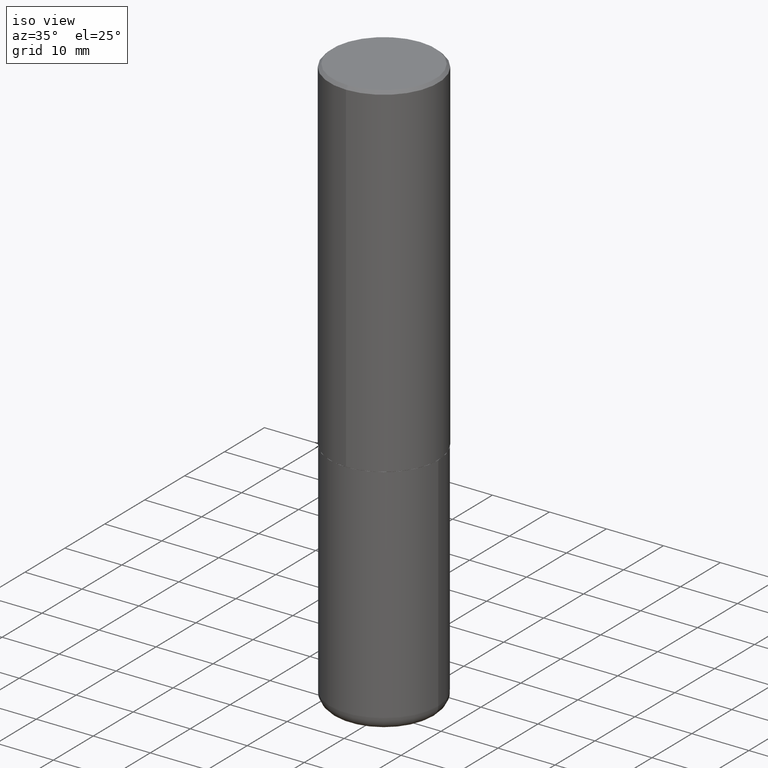
[diagram: clean part render]
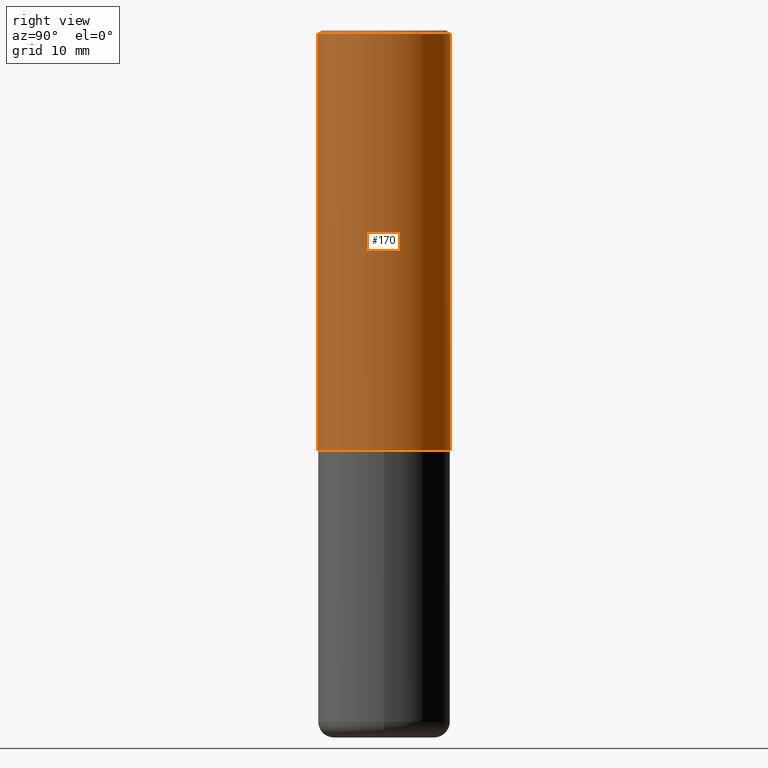
[diagram: tour spotlight — one face highlighted and labeled with its STEP entity id]
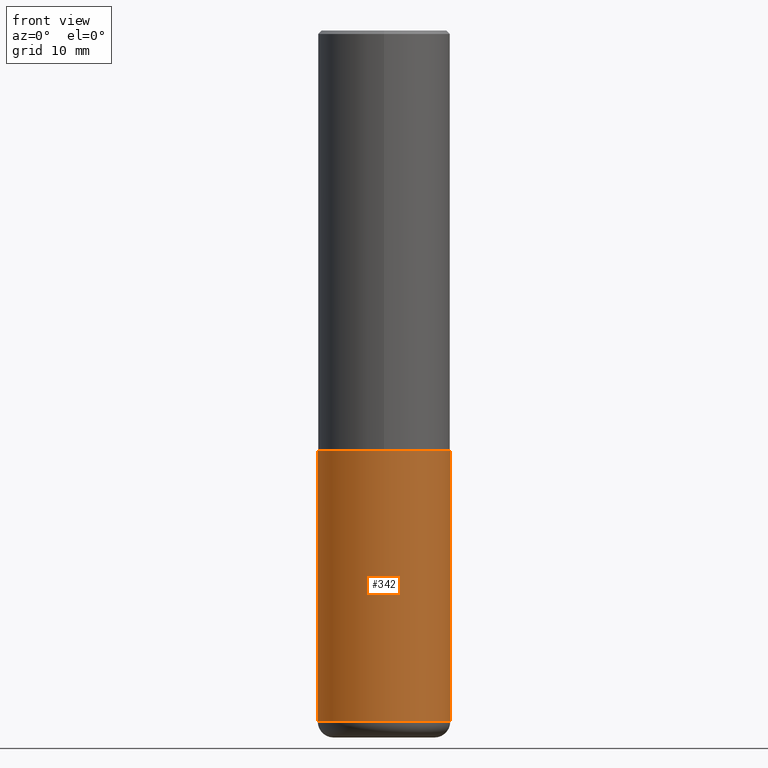
[diagram: tour spotlight — one face highlighted and labeled with its STEP entity id]
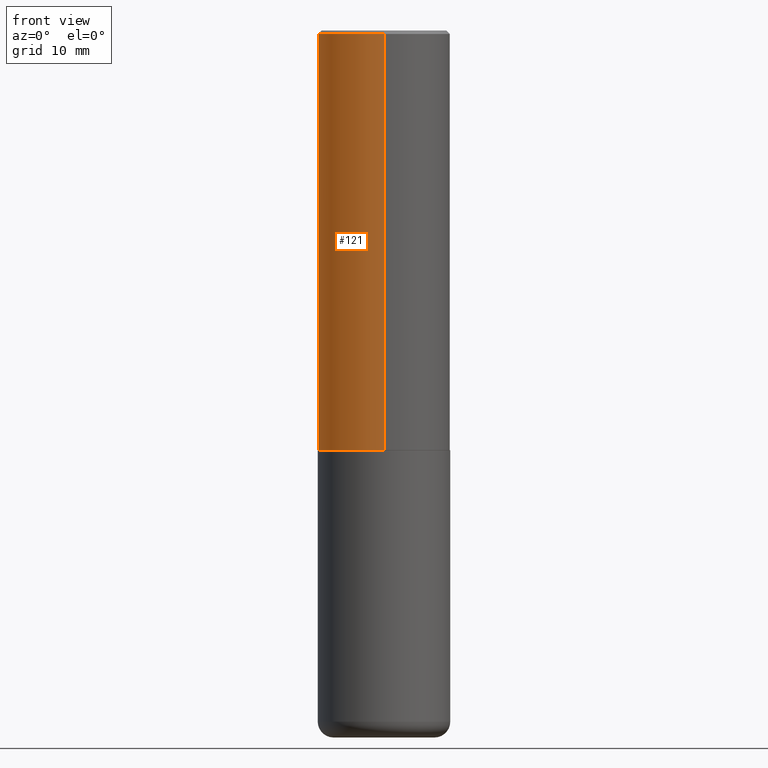
[diagram: tour spotlight — one face highlighted and labeled with its STEP entity id]
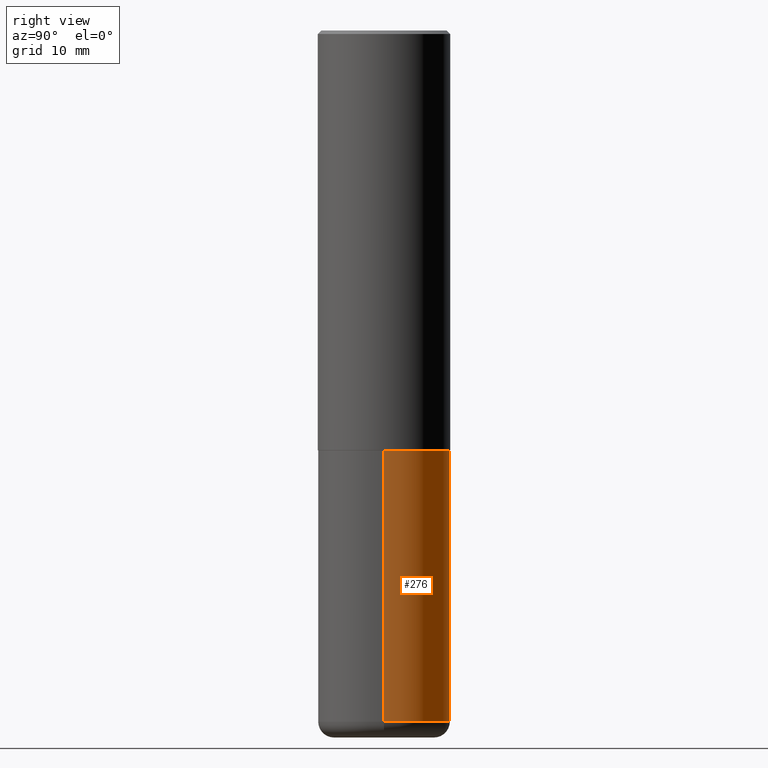
[diagram: tour spotlight — one face highlighted and labeled with its STEP entity id]
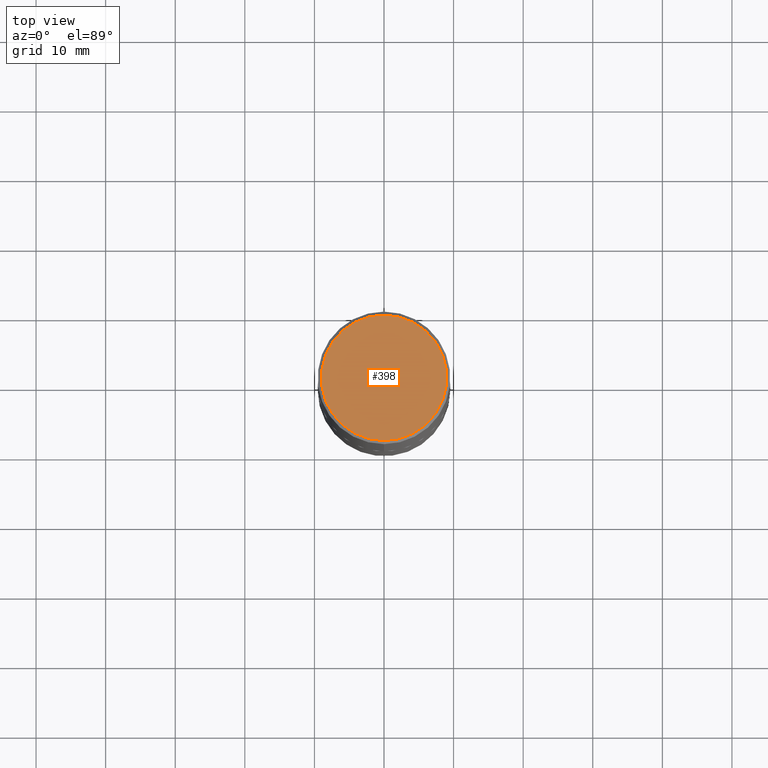
[diagram: tour spotlight — one face highlighted and labeled with its STEP entity id]
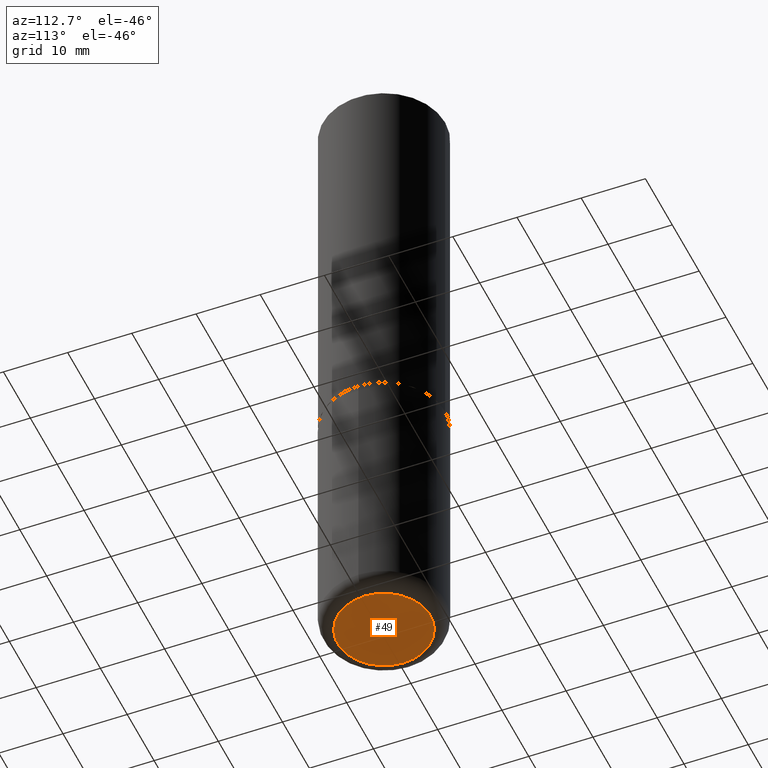
[diagram: tour spotlight — one face highlighted and labeled with its STEP entity id]
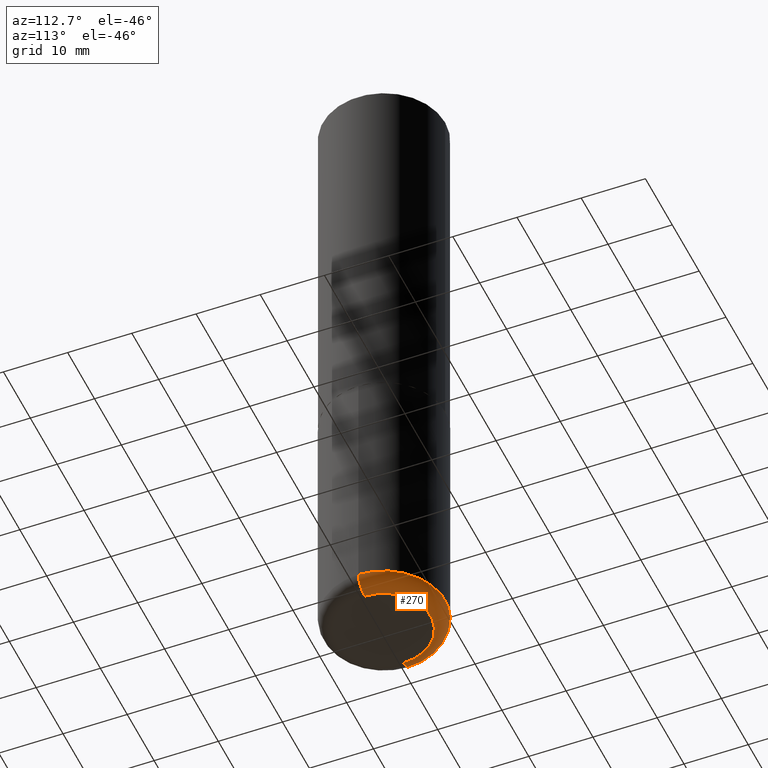
[diagram: tour spotlight — one face highlighted and labeled with its STEP entity id]
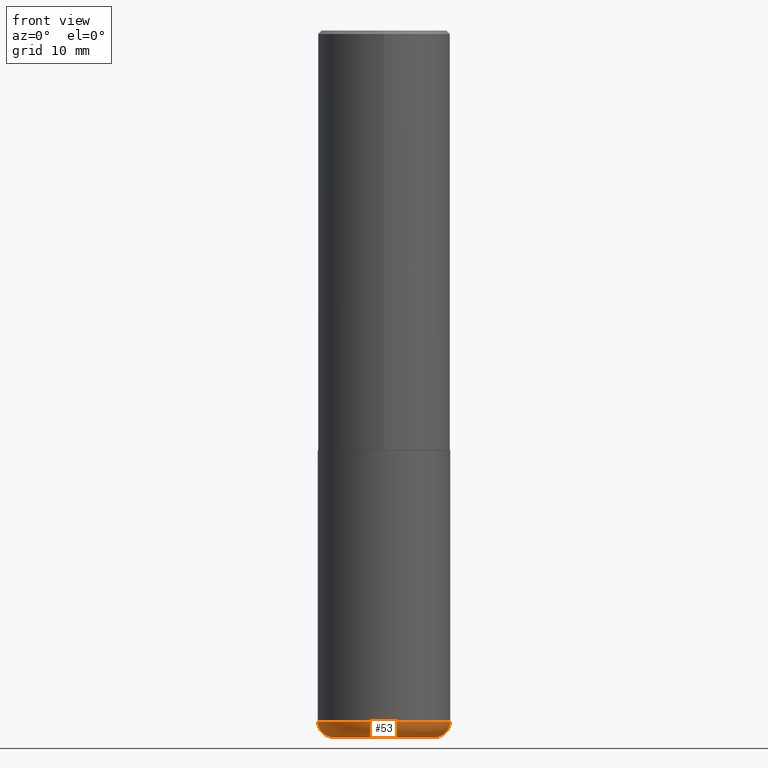
[diagram: tour spotlight — one face highlighted and labeled with its STEP entity id]
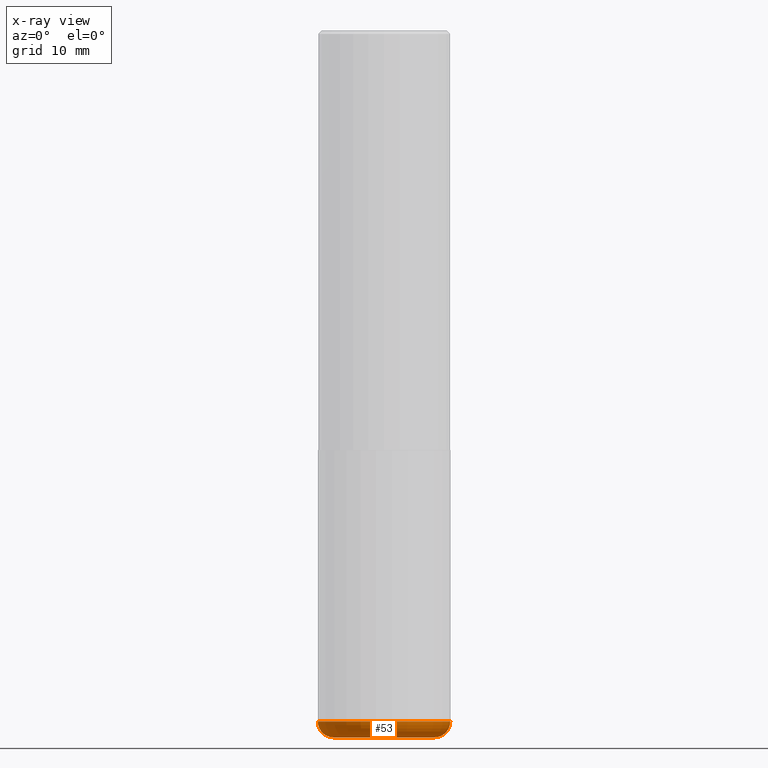
[diagram: x-ray of the same camera — body ghosted, this tour face saturated]
A machine part: a face-by-face anatomy tour. The part has 14 B-rep faces; the first image is the clean iso view, then the 8 largest visible faces are spotlighted one at a time (largest first), each with its STEP entity span.

Face 1 — right view, entity #170. In plain terms, the highlighted cylindrical surface (partial cylindrical patch) has radius 9.525 mm, axis along (-0, 0, 1).
Definition (entity closure, byte-faithful):
#2 = CARTESIAN_POINT ( 'NONE',  ( -2.618611004132294402E-15, -0.3750000000000086597, -2.373999999999998334 ) ) ;
#21 = CARTESIAN_POINT ( 'NONE',  ( 0.000000000000000000, 0.000000000000000000, 0.000000000000000000 ) ) ;
#31 = DIRECTION ( 'NONE',  ( -6.982962677686266711E-15, -1.000000000000000000, 3.491896057743181088E-15 ) ) ;
#42 = ORIENTED_EDGE ( 'NONE', *, *, #190, .F. ) ;
#52 = FACE_OUTER_BOUND ( 'NONE', #253, .T. ) ;
#57 = ORIENTED_EDGE ( 'NONE', *, *, #110, .F. ) ;
#91 = CARTESIAN_POINT ( 'NONE',  ( 2.618611004132350016E-15, 0.3749999999999998890, -0.02000000000000139513 ) ) ;
#105 = CIRCLE ( 'NONE', #287, 0.3749999999999999445 ) ;
#110 = EDGE_CURVE ( 'NONE', #388, #259, #265, .T. ) ;
#112 = CARTESIAN_POINT ( 'NONE',  ( 4.890358419050158045E-31, -6.983792115486392597E-17, -0.02000000000000008715 ) ) ;
#139 = VECTOR ( 'NONE', #207, 39.37007874015748143 ) ;
#158 = EDGE_CURVE ( 'NONE', #392, #264, #178, .T. ) ;
#164 = CARTESIAN_POINT ( 'NONE',  ( 2.664535259100406068E-15, 0.3749999999999921174, -2.374000000000001442 ) ) ;
#170 = ADVANCED_FACE ( 'NONE', ( #52 ), #380, .T. ) ;
#178 = LINE ( 'NONE', #238, #351 ) ;
#190 = EDGE_CURVE ( 'NONE', #259, #264, #105, .T. ) ;
#202 = CIRCLE ( 'NONE', #282, 0.3750000000000003886 ) ;
#207 = DIRECTION ( 'NONE',  ( -2.445179209525069021E-29, 3.491896057743180694E-15, 1.000000000000000000 ) ) ;
#215 = CARTESIAN_POINT ( 'NONE',  ( -2.572686749164323153E-15, -0.3750000000000000555, -0.01999999999999877570 ) ) ;
#225 = ORIENTED_EDGE ( 'NONE', *, *, #382, .T. ) ;
#238 = CARTESIAN_POINT ( 'NONE',  ( 2.664535259100376486E-15, 0.3750000000000001665, -1.309461021653693451E-15 ) ) ;
#242 = DIRECTION ( 'NONE',  ( -2.445179209525068741E-29, 3.491896057743181088E-15, 1.000000000000000000 ) ) ;
#252 = CARTESIAN_POINT ( 'NONE',  ( 5.804855443412511850E-29, -8.289761241082311446E-15, -2.373999999999999666 ) ) ;
#253 = EDGE_LOOP ( 'NONE', ( #225, #308, #42, #57 ) ) ;
#254 = DIRECTION ( 'NONE',  ( -6.982962677686265922E-15, -1.000000000000000000, 3.642463991552347014E-15 ) ) ;
#259 = VERTEX_POINT ( 'NONE', #215 ) ;
#264 = VERTEX_POINT ( 'NONE', #91 ) ;
#265 = LINE ( 'NONE', #269, #139 ) ;
#269 = CARTESIAN_POINT ( 'NONE',  ( -2.618611004132351200E-15, -0.3750000000000001665, 1.309461021653693451E-15 ) ) ;
#282 = AXIS2_PLACEMENT_3D ( 'NONE', #252, #356, #254 ) ;
#287 = AXIS2_PLACEMENT_3D ( 'NONE', #112, #309, #418 ) ;
#308 = ORIENTED_EDGE ( 'NONE', *, *, #158, .T. ) ;
#309 = DIRECTION ( 'NONE',  ( -2.445179209525068741E-29, 3.491896057743181088E-15, 1.000000000000000000 ) ) ;
#341 = DIRECTION ( 'NONE',  ( -2.445179209525069021E-29, 3.491896057743180694E-15, 1.000000000000000000 ) ) ;
#351 = VECTOR ( 'NONE', #341, 39.37007874015748143 ) ;
#356 = DIRECTION ( 'NONE',  ( -2.445179209525068741E-29, 3.491896057743181088E-15, 1.000000000000000000 ) ) ;
#380 = CYLINDRICAL_SURFACE ( 'NONE', #383, 0.3750000000000001665 ) ;
#382 = EDGE_CURVE ( 'NONE', #388, #392, #202, .T. ) ;
#383 = AXIS2_PLACEMENT_3D ( 'NONE', #21, #242, #31 ) ;
#388 = VERTEX_POINT ( 'NONE', #2 ) ;
#392 = VERTEX_POINT ( 'NONE', #164 ) ;
#418 = DIRECTION ( 'NONE',  ( -6.982962677686266711E-15, -1.000000000000000000, 3.494488891895537218E-15 ) ) ;

Face 2 — front view, entity #342. In plain terms, the highlighted cylindrical surface (partial cylindrical patch) has radius 9.525 mm, axis along (-0, 0, 1).
Definition (entity closure, byte-faithful):
#6 = VECTOR ( 'NONE', #151, 39.37007874015748143 ) ;
#24 = CARTESIAN_POINT ( 'NONE',  ( -0.3749999999999999445, -1.098715677577632337E-14, -3.910000000000000142 ) ) ;
#32 = ORIENTED_EDGE ( 'NONE', *, *, #317, .F. ) ;
#34 = VERTEX_POINT ( 'NONE', #357 ) ;
#41 = DIRECTION ( 'NONE',  ( 1.000000000000000000, -6.982962677686265922E-15, 4.876176775795935793E-29 ) ) ;
#56 = VECTOR ( 'NONE', #257, 39.37007874015748143 ) ;
#59 = DIRECTION ( 'NONE',  ( -2.445468806185136597E-29, 3.491481338843145583E-15, 1.000000000000000000 ) ) ;
#89 = AXIS2_PLACEMENT_3D ( 'NONE', #411, #348, #416 ) ;
#123 = CARTESIAN_POINT ( 'NONE',  ( 0.3749999999999999445, -1.627030303900905066E-14, -3.910000000000000142 ) ) ;
#129 = CARTESIAN_POINT ( 'NONE',  ( -0.3750000000000000555, -8.307444848214210473E-15, -2.375000000000000000 ) ) ;
#130 = ORIENTED_EDGE ( 'NONE', *, *, #205, .T. ) ;
#131 = CIRCLE ( 'NONE', #368, 0.3750000000000000555 ) ;
#151 = DIRECTION ( 'NONE',  ( -2.445468806185136877E-29, 3.491481338843145188E-15, 1.000000000000000000 ) ) ;
#155 = LINE ( 'NONE', #284, #6 ) ;
#188 = EDGE_CURVE ( 'NONE', #204, #345, #155, .T. ) ;
#189 = CYLINDRICAL_SURFACE ( 'NONE', #403, 0.3750000000000000555 ) ;
#192 = DIRECTION ( 'NONE',  ( -2.445468806185136597E-29, 3.491481338843145583E-15, 1.000000000000000000 ) ) ;
#204 = VERTEX_POINT ( 'NONE', #24 ) ;
#205 = EDGE_CURVE ( 'NONE', #204, #395, #217, .T. ) ;
#217 = CIRCLE ( 'NONE', #89, 0.3750000000000000555 ) ;
#229 = CARTESIAN_POINT ( 'NONE',  ( 0.3750000000000000555, -2.618611004132350016E-15, 1.828566290923476203E-29 ) ) ;
#248 = FACE_OUTER_BOUND ( 'NONE', #355, .T. ) ;
#257 = DIRECTION ( 'NONE',  ( -2.445468806185136877E-29, 3.491481338843145188E-15, 1.000000000000000000 ) ) ;
#284 = CARTESIAN_POINT ( 'NONE',  ( -0.3750000000000000555, 2.664535259100376091E-15, -1.844600658845589598E-29 ) ) ;
#292 = ORIENTED_EDGE ( 'NONE', *, *, #188, .F. ) ;
#297 = ORIENTED_EDGE ( 'NONE', *, *, #364, .T. ) ;
#316 = CARTESIAN_POINT ( 'NONE',  ( 0.000000000000000000, 0.000000000000000000, 0.000000000000000000 ) ) ;
#317 = EDGE_CURVE ( 'NONE', #345, #34, #131, .T. ) ;
#318 = LINE ( 'NONE', #229, #56 ) ;
#342 = ADVANCED_FACE ( 'NONE', ( #248 ), #189, .T. ) ;
#345 = VERTEX_POINT ( 'NONE', #129 ) ;
#346 = DIRECTION ( 'NONE',  ( 1.000000000000000000, -6.982962677686266711E-15, 0.000000000000000000 ) ) ;
#347 = CARTESIAN_POINT ( 'NONE',  ( 5.807988414689699417E-29, -8.292268179752470118E-15, -2.375000000000000000 ) ) ;
#348 = DIRECTION ( 'NONE',  ( -2.445468806185136597E-29, 3.491481338843145583E-15, 1.000000000000000000 ) ) ;
#355 = EDGE_LOOP ( 'NONE', ( #292, #130, #297, #32 ) ) ;
#357 = CARTESIAN_POINT ( 'NONE',  ( 0.3750000000000000555, -1.091087918388482013E-14, -2.375000000000000000 ) ) ;
#364 = EDGE_CURVE ( 'NONE', #395, #34, #318, .T. ) ;
#368 = AXIS2_PLACEMENT_3D ( 'NONE', #347, #59, #346 ) ;
#395 = VERTEX_POINT ( 'NONE', #123 ) ;
#403 = AXIS2_PLACEMENT_3D ( 'NONE', #316, #192, #41 ) ;
#411 = CARTESIAN_POINT ( 'NONE',  ( 9.561783032183883600E-29, -1.365169203487670064E-14, -3.910000000000000142 ) ) ;
#416 = DIRECTION ( 'NONE',  ( 1.000000000000000000, -6.982962677686266711E-15, 0.000000000000000000 ) ) ;

Face 3 — front view, entity #121. In plain terms, the highlighted cylindrical surface (partial cylindrical patch) has radius 9.525 mm, axis along (-0, 0, 1).
Definition (entity closure, byte-faithful):
#2 = CARTESIAN_POINT ( 'NONE',  ( -2.618611004132294402E-15, -0.3750000000000086597, -2.373999999999998334 ) ) ;
#16 = FACE_OUTER_BOUND ( 'NONE', #96, .T. ) ;
#17 = CYLINDRICAL_SURFACE ( 'NONE', #402, 0.3750000000000001665 ) ;
#26 = DIRECTION ( 'NONE',  ( -6.982962677686265922E-15, -1.000000000000000000, 3.642463991552347014E-15 ) ) ;
#46 = DIRECTION ( 'NONE',  ( -2.445179209525068741E-29, 3.491896057743181088E-15, 1.000000000000000000 ) ) ;
#63 = CARTESIAN_POINT ( 'NONE',  ( 5.804855443412511850E-29, -8.289761241082311446E-15, -2.373999999999999666 ) ) ;
#91 = CARTESIAN_POINT ( 'NONE',  ( 2.618611004132350016E-15, 0.3749999999999998890, -0.02000000000000139513 ) ) ;
#96 = EDGE_LOOP ( 'NONE', ( #172, #343, #156, #412 ) ) ;
#106 = DIRECTION ( 'NONE',  ( -6.982962677686266711E-15, -1.000000000000000000, 3.494488891895537218E-15 ) ) ;
#109 = DIRECTION ( 'NONE',  ( -6.982962677686266711E-15, -1.000000000000000000, 3.491896057743181088E-15 ) ) ;
#110 = EDGE_CURVE ( 'NONE', #388, #259, #265, .T. ) ;
#121 = ADVANCED_FACE ( 'NONE', ( #16 ), #17, .T. ) ;
#124 = EDGE_CURVE ( 'NONE', #264, #259, #296, .T. ) ;
#139 = VECTOR ( 'NONE', #207, 39.37007874015748143 ) ;
#142 = CARTESIAN_POINT ( 'NONE',  ( 0.000000000000000000, 0.000000000000000000, 0.000000000000000000 ) ) ;
#156 = ORIENTED_EDGE ( 'NONE', *, *, #110, .T. ) ;
#158 = EDGE_CURVE ( 'NONE', #392, #264, #178, .T. ) ;
#164 = CARTESIAN_POINT ( 'NONE',  ( 2.664535259100406068E-15, 0.3749999999999921174, -2.374000000000001442 ) ) ;
#172 = ORIENTED_EDGE ( 'NONE', *, *, #158, .F. ) ;
#178 = LINE ( 'NONE', #238, #351 ) ;
#199 = AXIS2_PLACEMENT_3D ( 'NONE', #63, #374, #26 ) ;
#207 = DIRECTION ( 'NONE',  ( -2.445179209525069021E-29, 3.491896057743180694E-15, 1.000000000000000000 ) ) ;
#212 = EDGE_CURVE ( 'NONE', #392, #388, #394, .T. ) ;
#215 = CARTESIAN_POINT ( 'NONE',  ( -2.572686749164323153E-15, -0.3750000000000000555, -0.01999999999999877570 ) ) ;
#236 = DIRECTION ( 'NONE',  ( -2.445179209525068741E-29, 3.491896057743181088E-15, 1.000000000000000000 ) ) ;
#238 = CARTESIAN_POINT ( 'NONE',  ( 2.664535259100376486E-15, 0.3750000000000001665, -1.309461021653693451E-15 ) ) ;
#259 = VERTEX_POINT ( 'NONE', #215 ) ;
#264 = VERTEX_POINT ( 'NONE', #91 ) ;
#265 = LINE ( 'NONE', #269, #139 ) ;
#269 = CARTESIAN_POINT ( 'NONE',  ( -2.618611004132351200E-15, -0.3750000000000001665, 1.309461021653693451E-15 ) ) ;
#296 = CIRCLE ( 'NONE', #361, 0.3749999999999999445 ) ;
#336 = CARTESIAN_POINT ( 'NONE',  ( 4.890358419050158045E-31, -6.983792115486392597E-17, -0.02000000000000008715 ) ) ;
#341 = DIRECTION ( 'NONE',  ( -2.445179209525069021E-29, 3.491896057743180694E-15, 1.000000000000000000 ) ) ;
#343 = ORIENTED_EDGE ( 'NONE', *, *, #212, .T. ) ;
#351 = VECTOR ( 'NONE', #341, 39.37007874015748143 ) ;
#361 = AXIS2_PLACEMENT_3D ( 'NONE', #336, #46, #106 ) ;
#374 = DIRECTION ( 'NONE',  ( -2.445179209525068741E-29, 3.491896057743181088E-15, 1.000000000000000000 ) ) ;
#388 = VERTEX_POINT ( 'NONE', #2 ) ;
#392 = VERTEX_POINT ( 'NONE', #164 ) ;
#394 = CIRCLE ( 'NONE', #199, 0.3750000000000003886 ) ;
#402 = AXIS2_PLACEMENT_3D ( 'NONE', #142, #236, #109 ) ;
#412 = ORIENTED_EDGE ( 'NONE', *, *, #124, .F. ) ;

Face 4 — right view, entity #276. In plain terms, the highlighted cylindrical surface (partial cylindrical patch) has radius 9.525 mm, axis along (-0, 0, 1).
Definition (entity closure, byte-faithful):
#6 = VECTOR ( 'NONE', #151, 39.37007874015748143 ) ;
#24 = CARTESIAN_POINT ( 'NONE',  ( -0.3749999999999999445, -1.098715677577632337E-14, -3.910000000000000142 ) ) ;
#25 = EDGE_CURVE ( 'NONE', #395, #204, #274, .T. ) ;
#27 = AXIS2_PLACEMENT_3D ( 'NONE', #391, #70, #195 ) ;
#34 = VERTEX_POINT ( 'NONE', #357 ) ;
#56 = VECTOR ( 'NONE', #257, 39.37007874015748143 ) ;
#70 = DIRECTION ( 'NONE',  ( -2.445468806185136597E-29, 3.491481338843145583E-15, 1.000000000000000000 ) ) ;
#73 = EDGE_LOOP ( 'NONE', ( #194, #378, #305, #182 ) ) ;
#88 = FACE_OUTER_BOUND ( 'NONE', #73, .T. ) ;
#107 = DIRECTION ( 'NONE',  ( 1.000000000000000000, -6.982962677686266711E-15, 0.000000000000000000 ) ) ;
#118 = AXIS2_PLACEMENT_3D ( 'NONE', #344, #148, #222 ) ;
#123 = CARTESIAN_POINT ( 'NONE',  ( 0.3749999999999999445, -1.627030303900905066E-14, -3.910000000000000142 ) ) ;
#129 = CARTESIAN_POINT ( 'NONE',  ( -0.3750000000000000555, -8.307444848214210473E-15, -2.375000000000000000 ) ) ;
#137 = EDGE_CURVE ( 'NONE', #34, #345, #258, .T. ) ;
#148 = DIRECTION ( 'NONE',  ( -2.445468806185136597E-29, 3.491481338843145583E-15, 1.000000000000000000 ) ) ;
#151 = DIRECTION ( 'NONE',  ( -2.445468806185136877E-29, 3.491481338843145188E-15, 1.000000000000000000 ) ) ;
#155 = LINE ( 'NONE', #284, #6 ) ;
#177 = DIRECTION ( 'NONE',  ( -2.445468806185136597E-29, 3.491481338843145583E-15, 1.000000000000000000 ) ) ;
#182 = ORIENTED_EDGE ( 'NONE', *, *, #364, .F. ) ;
#188 = EDGE_CURVE ( 'NONE', #204, #345, #155, .T. ) ;
#194 = ORIENTED_EDGE ( 'NONE', *, *, #25, .T. ) ;
#195 = DIRECTION ( 'NONE',  ( 1.000000000000000000, -6.982962677686266711E-15, 0.000000000000000000 ) ) ;
#204 = VERTEX_POINT ( 'NONE', #24 ) ;
#222 = DIRECTION ( 'NONE',  ( 1.000000000000000000, -6.982962677686265922E-15, 4.876176775795935793E-29 ) ) ;
#229 = CARTESIAN_POINT ( 'NONE',  ( 0.3750000000000000555, -2.618611004132350016E-15, 1.828566290923476203E-29 ) ) ;
#245 = CYLINDRICAL_SURFACE ( 'NONE', #118, 0.3750000000000000555 ) ;
#257 = DIRECTION ( 'NONE',  ( -2.445468806185136877E-29, 3.491481338843145188E-15, 1.000000000000000000 ) ) ;
#258 = CIRCLE ( 'NONE', #337, 0.3750000000000000555 ) ;
#274 = CIRCLE ( 'NONE', #27, 0.3750000000000000555 ) ;
#276 = ADVANCED_FACE ( 'NONE', ( #88 ), #245, .T. ) ;
#284 = CARTESIAN_POINT ( 'NONE',  ( -0.3750000000000000555, 2.664535259100376091E-15, -1.844600658845589598E-29 ) ) ;
#305 = ORIENTED_EDGE ( 'NONE', *, *, #137, .F. ) ;
#318 = LINE ( 'NONE', #229, #56 ) ;
#337 = AXIS2_PLACEMENT_3D ( 'NONE', #405, #177, #107 ) ;
#344 = CARTESIAN_POINT ( 'NONE',  ( 0.000000000000000000, 0.000000000000000000, 0.000000000000000000 ) ) ;
#345 = VERTEX_POINT ( 'NONE', #129 ) ;
#357 = CARTESIAN_POINT ( 'NONE',  ( 0.3750000000000000555, -1.091087918388482013E-14, -2.375000000000000000 ) ) ;
#364 = EDGE_CURVE ( 'NONE', #395, #34, #318, .T. ) ;
#378 = ORIENTED_EDGE ( 'NONE', *, *, #188, .T. ) ;
#391 = CARTESIAN_POINT ( 'NONE',  ( 9.561783032183883600E-29, -1.365169203487670064E-14, -3.910000000000000142 ) ) ;
#395 = VERTEX_POINT ( 'NONE', #123 ) ;
#405 = CARTESIAN_POINT ( 'NONE',  ( 5.807988414689699417E-29, -8.292268179752470118E-15, -2.375000000000000000 ) ) ;

Face 5 — top view, entity #398. In plain terms, the highlighted planar face has unit normal (0, -0, -1).
Definition (entity closure, byte-faithful):
#8 = VERTEX_POINT ( 'NONE', #358 ) ;
#13 = VERTEX_POINT ( 'NONE', #18 ) ;
#18 = CARTESIAN_POINT ( 'NONE',  ( -2.504081769186607821E-15, -0.3549999999999998157, 1.423316362782658809E-15 ) ) ;
#23 = ORIENTED_EDGE ( 'NONE', *, *, #324, .T. ) ;
#29 = CARTESIAN_POINT ( 'NONE',  ( -4.491629458662572214E-45, 6.414377784028912006E-31, 1.836932622838302825E-16 ) ) ;
#58 = DIRECTION ( 'NONE',  ( -2.445179209525068741E-29, 3.491896057743181088E-15, 1.000000000000000000 ) ) ;
#62 = AXIS2_PLACEMENT_3D ( 'NONE', #29, #58, #221 ) ;
#72 = DIRECTION ( 'NONE',  ( -6.982962677686266711E-15, -1.000000000000000000, 3.491896057743180694E-15 ) ) ;
#95 = PLANE ( 'NONE',  #275 ) ;
#127 = DIRECTION ( 'NONE',  ( 2.445179209525068741E-29, -3.491896057743180694E-15, -1.000000000000000000 ) ) ;
#133 = AXIS2_PLACEMENT_3D ( 'NONE', #231, #360, #72 ) ;
#214 = ORIENTED_EDGE ( 'NONE', *, *, #414, .T. ) ;
#221 = DIRECTION ( 'NONE',  ( -6.982962677686266711E-15, -1.000000000000000000, 3.491896057743180694E-15 ) ) ;
#224 = DIRECTION ( 'NONE',  ( 6.982962677686265922E-15, 1.000000000000000000, -3.491896057743180694E-15 ) ) ;
#231 = CARTESIAN_POINT ( 'NONE',  ( -4.491629458662572214E-45, 6.414377784028912006E-31, 1.836932622838302825E-16 ) ) ;
#234 = CIRCLE ( 'NONE', #133, 0.3549999999999998157 ) ;
#250 = CIRCLE ( 'NONE', #62, 0.3549999999999998157 ) ;
#275 = AXIS2_PLACEMENT_3D ( 'NONE', #353, #127, #224 ) ;
#290 = FACE_OUTER_BOUND ( 'NONE', #322, .T. ) ;
#322 = EDGE_LOOP ( 'NONE', ( #214, #23 ) ) ;
#324 = EDGE_CURVE ( 'NONE', #13, #8, #250, .T. ) ;
#353 = CARTESIAN_POINT ( 'NONE',  ( 2.478951750578623420E-15, 0.3549999999999998157, -1.147776469356913422E-15 ) ) ;
#358 = CARTESIAN_POINT ( 'NONE',  ( 2.548781377355486718E-15, 0.3549999999999998157, -1.055929838214998293E-15 ) ) ;
#360 = DIRECTION ( 'NONE',  ( -2.445179209525068741E-29, 3.491896057743181088E-15, 1.000000000000000000 ) ) ;
#398 = ADVANCED_FACE ( 'NONE', ( #290 ), #95, .F. ) ;
#414 = EDGE_CURVE ( 'NONE', #8, #13, #234, .T. ) ;

Face 6 — auxiliary view, entity #49. In plain terms, the highlighted planar face has unit normal (0, -0, -1).
Definition (entity closure, byte-faithful):
#38 = ORIENTED_EDGE ( 'NONE', *, *, #379, .F. ) ;
#49 = ADVANCED_FACE ( 'NONE', ( #203 ), #406, .T. ) ;
#51 = EDGE_CURVE ( 'NONE', #200, #299, #67, .T. ) ;
#67 = CIRCLE ( 'NONE', #415, 0.2850000000000000311 ) ;
#108 = DIRECTION ( 'NONE',  ( 2.438088387897960049E-29, -3.491481338843145188E-15, -1.000000000000000000 ) ) ;
#128 = EDGE_LOOP ( 'NONE', ( #334, #38 ) ) ;
#171 = DIRECTION ( 'NONE',  ( -2.445468806185136597E-29, 3.491481338843145583E-15, 1.000000000000000000 ) ) ;
#185 = CARTESIAN_POINT ( 'NONE',  ( 0.2850000000000000311, -1.595606971851316740E-14, -4.000000000000000000 ) ) ;
#187 = CIRCLE ( 'NONE', #330, 0.2850000000000000311 ) ;
#200 = VERTEX_POINT ( 'NONE', #185 ) ;
#203 = FACE_OUTER_BOUND ( 'NONE', #128, .T. ) ;
#232 = DIRECTION ( 'NONE',  ( 1.000000000000000000, -6.982962677686266711E-15, 0.000000000000000000 ) ) ;
#244 = CARTESIAN_POINT ( 'NONE',  ( -0.2850000000000000311, -1.146401766711631116E-14, -4.000000000000000000 ) ) ;
#293 = DIRECTION ( 'NONE',  ( -2.445468806185136597E-29, 3.491481338843145583E-15, 1.000000000000000000 ) ) ;
#299 = VERTEX_POINT ( 'NONE', #244 ) ;
#303 = CARTESIAN_POINT ( 'NONE',  ( 9.781875224740546387E-29, -1.396592535537258233E-14, -4.000000000000000000 ) ) ;
#321 = AXIS2_PLACEMENT_3D ( 'NONE', #303, #108, #401 ) ;
#327 = DIRECTION ( 'NONE',  ( 1.000000000000000000, -6.982962677686266711E-15, 0.000000000000000000 ) ) ;
#330 = AXIS2_PLACEMENT_3D ( 'NONE', #390, #293, #327 ) ;
#333 = CARTESIAN_POINT ( 'NONE',  ( 9.781875224740546387E-29, -1.396592535537258233E-14, -4.000000000000000000 ) ) ;
#334 = ORIENTED_EDGE ( 'NONE', *, *, #51, .F. ) ;
#379 = EDGE_CURVE ( 'NONE', #299, #200, #187, .T. ) ;
#390 = CARTESIAN_POINT ( 'NONE',  ( 9.781875224740546387E-29, -1.396592535537258233E-14, -4.000000000000000000 ) ) ;
#401 = DIRECTION ( 'NONE',  ( -1.000000000000000000, 6.982962677686265922E-15, -4.876176775795935793E-29 ) ) ;
#406 = PLANE ( 'NONE',  #321 ) ;
#415 = AXIS2_PLACEMENT_3D ( 'NONE', #333, #171, #232 ) ;

Face 7 — auxiliary view, entity #270. In plain terms, the highlighted toroidal blend (fillet) surface has major radius 7.239 mm and minor (blend) radius 2.286 mm.
Definition (entity closure, byte-faithful):
#9 = EDGE_CURVE ( 'NONE', #200, #395, #94, .T. ) ;
#20 = AXIS2_PLACEMENT_3D ( 'NONE', #86, #314, #117 ) ;
#24 = CARTESIAN_POINT ( 'NONE',  ( -0.3749999999999999445, -1.098715677577632337E-14, -3.910000000000000142 ) ) ;
#25 = EDGE_CURVE ( 'NONE', #395, #204, #274, .T. ) ;
#27 = AXIS2_PLACEMENT_3D ( 'NONE', #391, #70, #195 ) ;
#39 = DIRECTION ( 'NONE',  ( -6.982962677686266711E-15, -1.000000000000000000, 3.491481338843145583E-15 ) ) ;
#40 = EDGE_CURVE ( 'NONE', #299, #204, #302, .T. ) ;
#51 = EDGE_CURVE ( 'NONE', #200, #299, #67, .T. ) ;
#61 = TOROIDAL_SURFACE ( 'NONE', #20, 0.2850000000000000311, 0.08999999999999992728 ) ;
#67 = CIRCLE ( 'NONE', #415, 0.2850000000000000311 ) ;
#70 = DIRECTION ( 'NONE',  ( -2.445468806185136597E-29, 3.491481338843145583E-15, 1.000000000000000000 ) ) ;
#86 = CARTESIAN_POINT ( 'NONE',  ( 9.561783032183883600E-29, -1.365169203487670064E-14, -3.910000000000000142 ) ) ;
#94 = CIRCLE ( 'NONE', #160, 0.08999999999999992728 ) ;
#117 = DIRECTION ( 'NONE',  ( 1.000000000000000000, -6.982962677686263555E-15, 4.883557194083111219E-29 ) ) ;
#123 = CARTESIAN_POINT ( 'NONE',  ( 0.3749999999999999445, -1.627030303900905066E-14, -3.910000000000000142 ) ) ;
#125 = EDGE_LOOP ( 'NONE', ( #294, #230, #191, #163 ) ) ;
#159 = DIRECTION ( 'NONE',  ( -1.000000000000000000, 7.105427357600996337E-15, 0.000000000000000000 ) ) ;
#160 = AXIS2_PLACEMENT_3D ( 'NONE', #325, #39, #166 ) ;
#163 = ORIENTED_EDGE ( 'NONE', *, *, #9, .F. ) ;
#166 = DIRECTION ( 'NONE',  ( 1.000000000000000000, -6.982962677686273810E-15, 0.000000000000000000 ) ) ;
#171 = DIRECTION ( 'NONE',  ( -2.445468806185136597E-29, 3.491481338843145583E-15, 1.000000000000000000 ) ) ;
#185 = CARTESIAN_POINT ( 'NONE',  ( 0.2850000000000000311, -1.595606971851316740E-14, -4.000000000000000000 ) ) ;
#191 = ORIENTED_EDGE ( 'NONE', *, *, #25, .F. ) ;
#195 = DIRECTION ( 'NONE',  ( 1.000000000000000000, -6.982962677686266711E-15, 0.000000000000000000 ) ) ;
#198 = CARTESIAN_POINT ( 'NONE',  ( -0.2850000000000000311, -1.162664523796041410E-14, -3.910000000000000142 ) ) ;
#200 = VERTEX_POINT ( 'NONE', #185 ) ;
#204 = VERTEX_POINT ( 'NONE', #24 ) ;
#230 = ORIENTED_EDGE ( 'NONE', *, *, #40, .T. ) ;
#232 = DIRECTION ( 'NONE',  ( 1.000000000000000000, -6.982962677686266711E-15, 0.000000000000000000 ) ) ;
#244 = CARTESIAN_POINT ( 'NONE',  ( -0.2850000000000000311, -1.146401766711631116E-14, -4.000000000000000000 ) ) ;
#266 = AXIS2_PLACEMENT_3D ( 'NONE', #198, #319, #159 ) ;
#270 = ADVANCED_FACE ( 'NONE', ( #381 ), #61, .T. ) ;
#274 = CIRCLE ( 'NONE', #27, 0.3750000000000000555 ) ;
#294 = ORIENTED_EDGE ( 'NONE', *, *, #51, .T. ) ;
#299 = VERTEX_POINT ( 'NONE', #244 ) ;
#302 = CIRCLE ( 'NONE', #266, 0.08999999999999992728 ) ;
#314 = DIRECTION ( 'NONE',  ( -2.445468806185136597E-29, 3.491481338843145583E-15, 1.000000000000000000 ) ) ;
#319 = DIRECTION ( 'NONE',  ( 7.105427357601001859E-15, 1.000000000000000000, -3.491481338843145583E-15 ) ) ;
#325 = CARTESIAN_POINT ( 'NONE',  ( 0.2850000000000000311, -1.564183639801728729E-14, -3.910000000000000142 ) ) ;
#333 = CARTESIAN_POINT ( 'NONE',  ( 9.781875224740546387E-29, -1.396592535537258233E-14, -4.000000000000000000 ) ) ;
#381 = FACE_OUTER_BOUND ( 'NONE', #125, .T. ) ;
#391 = CARTESIAN_POINT ( 'NONE',  ( 9.561783032183883600E-29, -1.365169203487670064E-14, -3.910000000000000142 ) ) ;
#395 = VERTEX_POINT ( 'NONE', #123 ) ;
#415 = AXIS2_PLACEMENT_3D ( 'NONE', #333, #171, #232 ) ;

Face 8 — front view, entity #53. An x-ray twin of the same camera follows (body ghosted, this face saturated) — the face is partly hidden behind the body. In plain terms, the highlighted toroidal blend (fillet) surface has major radius 7.239 mm and minor (blend) radius 2.286 mm.
Definition (entity closure, byte-faithful):
#5 = ORIENTED_EDGE ( 'NONE', *, *, #9, .T. ) ;
#9 = EDGE_CURVE ( 'NONE', #200, #395, #94, .T. ) ;
#24 = CARTESIAN_POINT ( 'NONE',  ( -0.3749999999999999445, -1.098715677577632337E-14, -3.910000000000000142 ) ) ;
#39 = DIRECTION ( 'NONE',  ( -6.982962677686266711E-15, -1.000000000000000000, 3.491481338843145583E-15 ) ) ;
#40 = EDGE_CURVE ( 'NONE', #299, #204, #302, .T. ) ;
#47 = DIRECTION ( 'NONE',  ( -2.445468806185136597E-29, 3.491481338843145583E-15, 1.000000000000000000 ) ) ;
#53 = ADVANCED_FACE ( 'NONE', ( #140 ), #328, .T. ) ;
#89 = AXIS2_PLACEMENT_3D ( 'NONE', #411, #348, #416 ) ;
#94 = CIRCLE ( 'NONE', #160, 0.08999999999999992728 ) ;
#101 = EDGE_LOOP ( 'NONE', ( #285, #331, #5, #323 ) ) ;
#123 = CARTESIAN_POINT ( 'NONE',  ( 0.3749999999999999445, -1.627030303900905066E-14, -3.910000000000000142 ) ) ;
#140 = FACE_OUTER_BOUND ( 'NONE', #101, .T. ) ;
#159 = DIRECTION ( 'NONE',  ( -1.000000000000000000, 7.105427357600996337E-15, 0.000000000000000000 ) ) ;
#160 = AXIS2_PLACEMENT_3D ( 'NONE', #325, #39, #166 ) ;
#166 = DIRECTION ( 'NONE',  ( 1.000000000000000000, -6.982962677686273810E-15, 0.000000000000000000 ) ) ;
#174 = DIRECTION ( 'NONE',  ( 1.000000000000000000, -6.982962677686263555E-15, 4.883557194083111219E-29 ) ) ;
#185 = CARTESIAN_POINT ( 'NONE',  ( 0.2850000000000000311, -1.595606971851316740E-14, -4.000000000000000000 ) ) ;
#187 = CIRCLE ( 'NONE', #330, 0.2850000000000000311 ) ;
#198 = CARTESIAN_POINT ( 'NONE',  ( -0.2850000000000000311, -1.162664523796041410E-14, -3.910000000000000142 ) ) ;
#200 = VERTEX_POINT ( 'NONE', #185 ) ;
#204 = VERTEX_POINT ( 'NONE', #24 ) ;
#205 = EDGE_CURVE ( 'NONE', #204, #395, #217, .T. ) ;
#213 = CARTESIAN_POINT ( 'NONE',  ( 9.561783032183883600E-29, -1.365169203487670064E-14, -3.910000000000000142 ) ) ;
#217 = CIRCLE ( 'NONE', #89, 0.3750000000000000555 ) ;
#244 = CARTESIAN_POINT ( 'NONE',  ( -0.2850000000000000311, -1.146401766711631116E-14, -4.000000000000000000 ) ) ;
#266 = AXIS2_PLACEMENT_3D ( 'NONE', #198, #319, #159 ) ;
#285 = ORIENTED_EDGE ( 'NONE', *, *, #40, .F. ) ;
#293 = DIRECTION ( 'NONE',  ( -2.445468806185136597E-29, 3.491481338843145583E-15, 1.000000000000000000 ) ) ;
#299 = VERTEX_POINT ( 'NONE', #244 ) ;
#302 = CIRCLE ( 'NONE', #266, 0.08999999999999992728 ) ;
#319 = DIRECTION ( 'NONE',  ( 7.105427357601001859E-15, 1.000000000000000000, -3.491481338843145583E-15 ) ) ;
#323 = ORIENTED_EDGE ( 'NONE', *, *, #205, .F. ) ;
#325 = CARTESIAN_POINT ( 'NONE',  ( 0.2850000000000000311, -1.564183639801728729E-14, -3.910000000000000142 ) ) ;
#327 = DIRECTION ( 'NONE',  ( 1.000000000000000000, -6.982962677686266711E-15, 0.000000000000000000 ) ) ;
#328 = TOROIDAL_SURFACE ( 'NONE', #329, 0.2850000000000000311, 0.08999999999999992728 ) ;
#329 = AXIS2_PLACEMENT_3D ( 'NONE', #213, #47, #174 ) ;
#330 = AXIS2_PLACEMENT_3D ( 'NONE', #390, #293, #327 ) ;
#331 = ORIENTED_EDGE ( 'NONE', *, *, #379, .T. ) ;
#348 = DIRECTION ( 'NONE',  ( -2.445468806185136597E-29, 3.491481338843145583E-15, 1.000000000000000000 ) ) ;
#379 = EDGE_CURVE ( 'NONE', #299, #200, #187, .T. ) ;
#390 = CARTESIAN_POINT ( 'NONE',  ( 9.781875224740546387E-29, -1.396592535537258233E-14, -4.000000000000000000 ) ) ;
#395 = VERTEX_POINT ( 'NONE', #123 ) ;
#411 = CARTESIAN_POINT ( 'NONE',  ( 9.561783032183883600E-29, -1.365169203487670064E-14, -3.910000000000000142 ) ) ;
#416 = DIRECTION ( 'NONE',  ( 1.000000000000000000, -6.982962677686266711E-15, 0.000000000000000000 ) ) ;